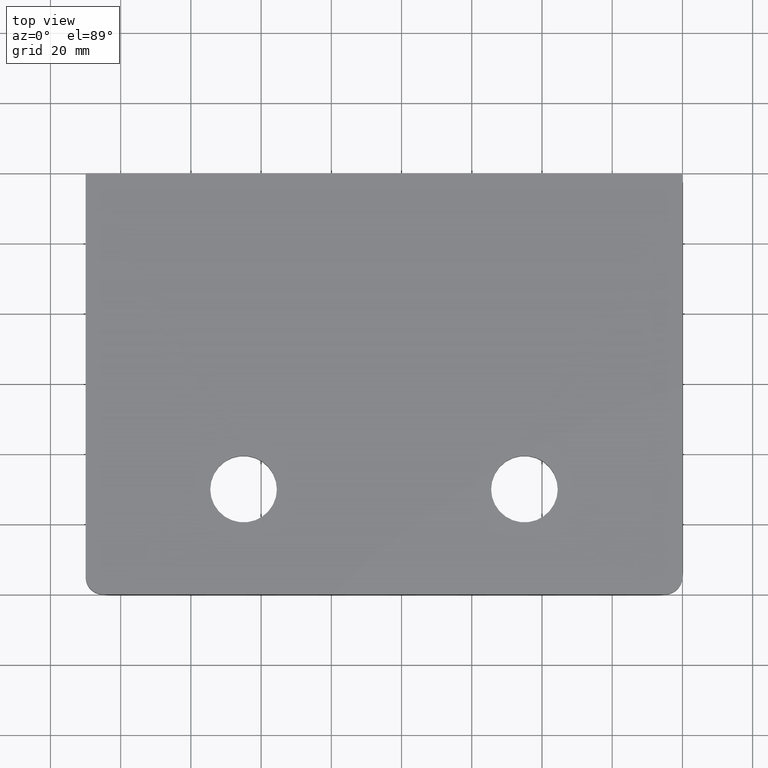
[diagram: clean part render]
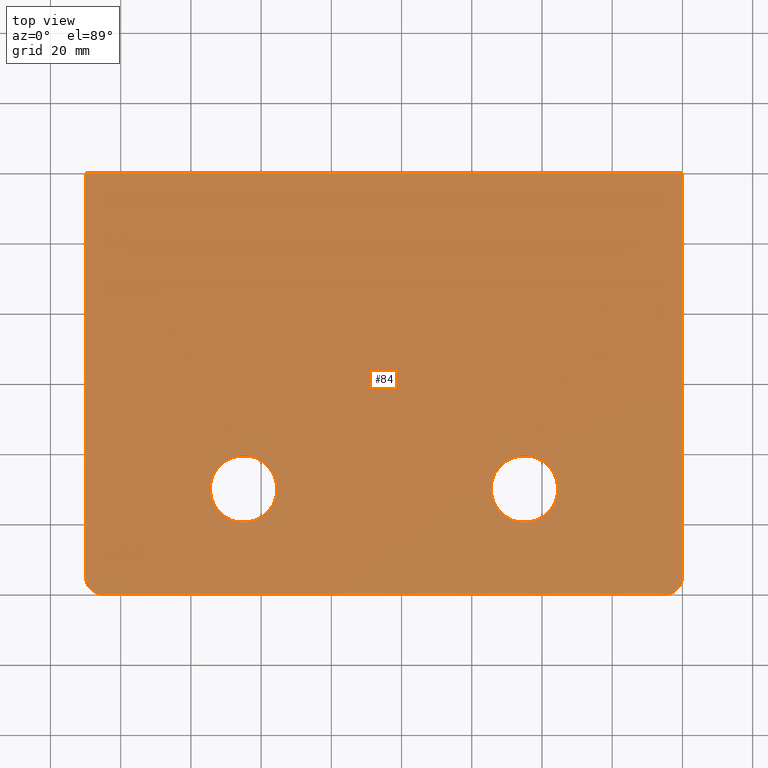
[diagram: same view with one face highlighted and labeled with its STEP entity id]
A machine part, top view. The second image highlights one B-rep face of the part: STEP entity #84.
In plain terms, the highlighted planar face has unit normal (0, -0, 1).
Its self-contained STEP definition (entity closure, byte-faithful):
#1 = VERTEX_POINT ( 'NONE', #235 ) ;
#3 = DIRECTION ( 'NONE',  ( 0.000000000000000000, -0.000000000000000000, 1.000000000000000000 ) ) ;
#14 = CARTESIAN_POINT ( 'NONE',  ( -125.0000000000000000, 29.99999999999999289, 3.061616997868380183E-16 ) ) ;
#15 = VERTEX_POINT ( 'NONE', #201 ) ;
#26 = ORIENTED_EDGE ( 'NONE', *, *, #275, .T. ) ;
#27 = EDGE_LOOP ( 'NONE', ( #237, #146 ) ) ;
#32 = VECTOR ( 'NONE', #156, 1000.000000000000000 ) ;
#36 = DIRECTION ( 'NONE',  ( 1.000000000000000000, 0.000000000000000000, 0.000000000000000000 ) ) ;
#38 = DIRECTION ( 'NONE',  ( 1.000000000000000000, 0.000000000000000000, -0.000000000000000000 ) ) ;
#55 = AXIS2_PLACEMENT_3D ( 'NONE', #14, #200, #303 ) ;
#57 = VERTEX_POINT ( 'NONE', #359 ) ;
#67 = ORIENTED_EDGE ( 'NONE', *, *, #155, .F. ) ;
#73 = DIRECTION ( 'NONE',  ( 0.000000000000000000, -0.000000000000000000, 1.000000000000000000 ) ) ;
#76 = FACE_OUTER_BOUND ( 'NONE', #232, .T. ) ;
#78 = FACE_BOUND ( 'NONE', #27, .T. ) ;
#83 = LINE ( 'NONE', #194, #32 ) ;
#84 = ADVANCED_FACE ( 'NONE', ( #78, #96, #76 ), #133, .T. ) ;
#92 = AXIS2_PLACEMENT_3D ( 'NONE', #344, #73, #207 ) ;
#95 = VERTEX_POINT ( 'NONE', #101 ) ;
#96 = FACE_BOUND ( 'NONE', #297, .T. ) ;
#99 = CARTESIAN_POINT ( 'NONE',  ( 0.000000000000000000, 0.000000000000000000, 0.000000000000000000 ) ) ;
#101 = CARTESIAN_POINT ( 'NONE',  ( -54.50000000000000711, 29.99999999999999289, 3.061616997868380183E-16 ) ) ;
#105 = CARTESIAN_POINT ( 'NONE',  ( -134.5000000000000000, 29.99999999999999289, 3.061616997868380183E-16 ) ) ;
#106 = LINE ( 'NONE', #414, #312 ) ;
#121 = ORIENTED_EDGE ( 'NONE', *, *, #373, .T. ) ;
#124 = VERTEX_POINT ( 'NONE', #173 ) ;
#133 = PLANE ( 'NONE',  #208 ) ;
#134 = VECTOR ( 'NONE', #241, 1000.000000000000000 ) ;
#146 = ORIENTED_EDGE ( 'NONE', *, *, #188, .F. ) ;
#148 = VERTEX_POINT ( 'NONE', #210 ) ;
#155 = EDGE_CURVE ( 'NONE', #95, #1, #332, .T. ) ;
#156 = DIRECTION ( 'NONE',  ( 8.128421619622342965E-33, 1.000000000000000000, 0.000000000000000000 ) ) ;
#161 = ORIENTED_EDGE ( 'NONE', *, *, #358, .T. ) ;
#164 = CARTESIAN_POINT ( 'NONE',  ( -45.00000000000001421, 29.99999999999999289, 3.061616997868380183E-16 ) ) ;
#167 = DIRECTION ( 'NONE',  ( 0.000000000000000000, -0.000000000000000000, 1.000000000000000000 ) ) ;
#173 = CARTESIAN_POINT ( 'NONE',  ( -165.0000000000000000, -2.139529996157434193E-14, 0.000000000000000000 ) ) ;
#185 = ORIENTED_EDGE ( 'NONE', *, *, #403, .T. ) ;
#188 = EDGE_CURVE ( 'NONE', #223, #369, #417, .T. ) ;
#192 = CIRCLE ( 'NONE', #55, 9.499999999999994671 ) ;
#194 = CARTESIAN_POINT ( 'NONE',  ( 0.000000000000000000, 0.000000000000000000, 0.000000000000000000 ) ) ;
#200 = DIRECTION ( 'NONE',  ( -0.000000000000000000, -0.000000000000000000, 1.000000000000000000 ) ) ;
#201 = CARTESIAN_POINT ( 'NONE',  ( -4.999999999999999112, -6.483424230780101763E-16, 0.000000000000000000 ) ) ;
#202 = DIRECTION ( 'NONE',  ( 1.000000000000000000, 0.000000000000000000, 0.000000000000000000 ) ) ;
#206 = EDGE_CURVE ( 'NONE', #124, #15, #106, .T. ) ;
#207 = DIRECTION ( 'NONE',  ( 1.000000000000000000, 0.000000000000000000, 0.000000000000000000 ) ) ;
#208 = AXIS2_PLACEMENT_3D ( 'NONE', #99, #3, #38 ) ;
#209 = CIRCLE ( 'NONE', #92, 5.000000000000004441 ) ;
#210 = CARTESIAN_POINT ( 'NONE',  ( 4.064210809811171209E-32, 4.999999999999999112, 0.000000000000000000 ) ) ;
#214 = CARTESIAN_POINT ( 'NONE',  ( -45.00000000000001421, 29.99999999999999289, 3.061616997868380183E-16 ) ) ;
#216 = AXIS2_PLACEMENT_3D ( 'NONE', #349, #167, #416 ) ;
#223 = VERTEX_POINT ( 'NONE', #105 ) ;
#226 = EDGE_CURVE ( 'NONE', #148, #406, #83, .T. ) ;
#232 = EDGE_LOOP ( 'NONE', ( #382, #121, #413, #26, #185, #161 ) ) ;
#235 = CARTESIAN_POINT ( 'NONE',  ( -35.50000000000001421, 29.99999999999999289, 3.061616997868380183E-16 ) ) ;
#237 = ORIENTED_EDGE ( 'NONE', *, *, #282, .F. ) ;
#241 = DIRECTION ( 'NONE',  ( -0.000000000000000000, -1.000000000000000000, -0.000000000000000000 ) ) ;
#253 = AXIS2_PLACEMENT_3D ( 'NONE', #164, #384, #202 ) ;
#254 = CARTESIAN_POINT ( 'NONE',  ( -125.0000000000000000, 29.99999999999999289, 3.061616997868380183E-16 ) ) ;
#255 = AXIS2_PLACEMENT_3D ( 'NONE', #254, #401, #350 ) ;
#273 = CARTESIAN_POINT ( 'NONE',  ( -115.5000000000000000, 29.99999999999999289, 3.061616997868380183E-16 ) ) ;
#275 = EDGE_CURVE ( 'NONE', #406, #57, #409, .T. ) ;
#282 = EDGE_CURVE ( 'NONE', #369, #223, #192, .T. ) ;
#297 = EDGE_LOOP ( 'NONE', ( #347, #67 ) ) ;
#299 = CARTESIAN_POINT ( 'NONE',  ( 9.754105943546810464E-31, 120.0000000000000000, 0.000000000000000000 ) ) ;
#303 = DIRECTION ( 'NONE',  ( 1.000000000000000000, 0.000000000000000000, 0.000000000000000000 ) ) ;
#308 = CARTESIAN_POINT ( 'NONE',  ( 9.754105943546810464E-31, 120.0000000000000000, 0.000000000000000000 ) ) ;
#310 = AXIS2_PLACEMENT_3D ( 'NONE', #214, #355, #36 ) ;
#312 = VECTOR ( 'NONE', #377, 1000.000000000000000 ) ;
#332 = CIRCLE ( 'NONE', #310, 9.499999999999994671 ) ;
#344 = CARTESIAN_POINT ( 'NONE',  ( -165.0000000000000000, 4.999999999999978684, 0.000000000000000000 ) ) ;
#347 = ORIENTED_EDGE ( 'NONE', *, *, #396, .F. ) ;
#349 = CARTESIAN_POINT ( 'NONE',  ( -5.000000000000000000, 4.999999999999999112, 0.000000000000000000 ) ) ;
#350 = DIRECTION ( 'NONE',  ( 1.000000000000000000, 0.000000000000000000, 0.000000000000000000 ) ) ;
#351 = CARTESIAN_POINT ( 'NONE',  ( -170.0000000000000000, 4.999999999999976907, 0.000000000000000000 ) ) ;
#355 = DIRECTION ( 'NONE',  ( -0.000000000000000000, -0.000000000000000000, 1.000000000000000000 ) ) ;
#358 = EDGE_CURVE ( 'NONE', #408, #124, #209, .T. ) ;
#359 = CARTESIAN_POINT ( 'NONE',  ( -170.0000000000000000, 119.9999999999999858, 0.000000000000000000 ) ) ;
#369 = VERTEX_POINT ( 'NONE', #273 ) ;
#373 = EDGE_CURVE ( 'NONE', #15, #148, #383, .T. ) ;
#377 = DIRECTION ( 'NONE',  ( 1.000000000000000000, 1.296684846156020550E-16, -0.000000000000000000 ) ) ;
#379 = DIRECTION ( 'NONE',  ( -1.000000000000000000, -8.163404592832032733E-17, 0.000000000000000000 ) ) ;
#382 = ORIENTED_EDGE ( 'NONE', *, *, #206, .T. ) ;
#383 = CIRCLE ( 'NONE', #216, 5.000000000000000000 ) ;
#384 = DIRECTION ( 'NONE',  ( -0.000000000000000000, -0.000000000000000000, 1.000000000000000000 ) ) ;
#391 = CIRCLE ( 'NONE', #253, 9.499999999999994671 ) ;
#396 = EDGE_CURVE ( 'NONE', #1, #95, #391, .T. ) ;
#400 = VECTOR ( 'NONE', #379, 1000.000000000000000 ) ;
#401 = DIRECTION ( 'NONE',  ( -0.000000000000000000, -0.000000000000000000, 1.000000000000000000 ) ) ;
#403 = EDGE_CURVE ( 'NONE', #57, #408, #450, .T. ) ;
#406 = VERTEX_POINT ( 'NONE', #308 ) ;
#408 = VERTEX_POINT ( 'NONE', #351 ) ;
#409 = LINE ( 'NONE', #299, #400 ) ;
#413 = ORIENTED_EDGE ( 'NONE', *, *, #226, .T. ) ;
#414 = CARTESIAN_POINT ( 'NONE',  ( 0.000000000000000000, 0.000000000000000000, 0.000000000000000000 ) ) ;
#416 = DIRECTION ( 'NONE',  ( 1.000000000000000000, 0.000000000000000000, 0.000000000000000000 ) ) ;
#417 = CIRCLE ( 'NONE', #255, 9.499999999999994671 ) ;
#424 = CARTESIAN_POINT ( 'NONE',  ( -170.0000000000000000, -2.204364238465235191E-14, 0.000000000000000000 ) ) ;
#450 = LINE ( 'NONE', #424, #134 ) ;